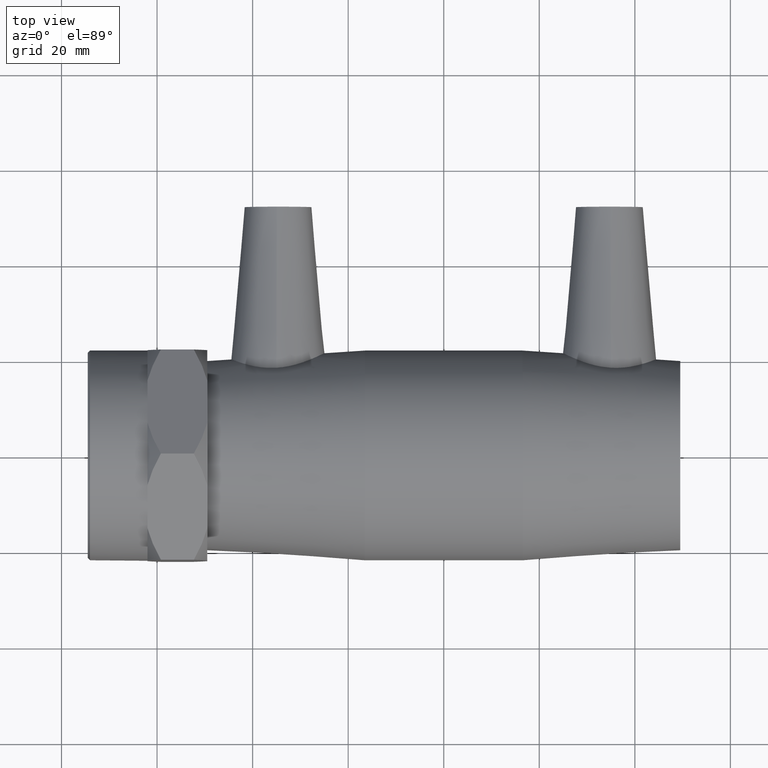
[diagram: clean part render]
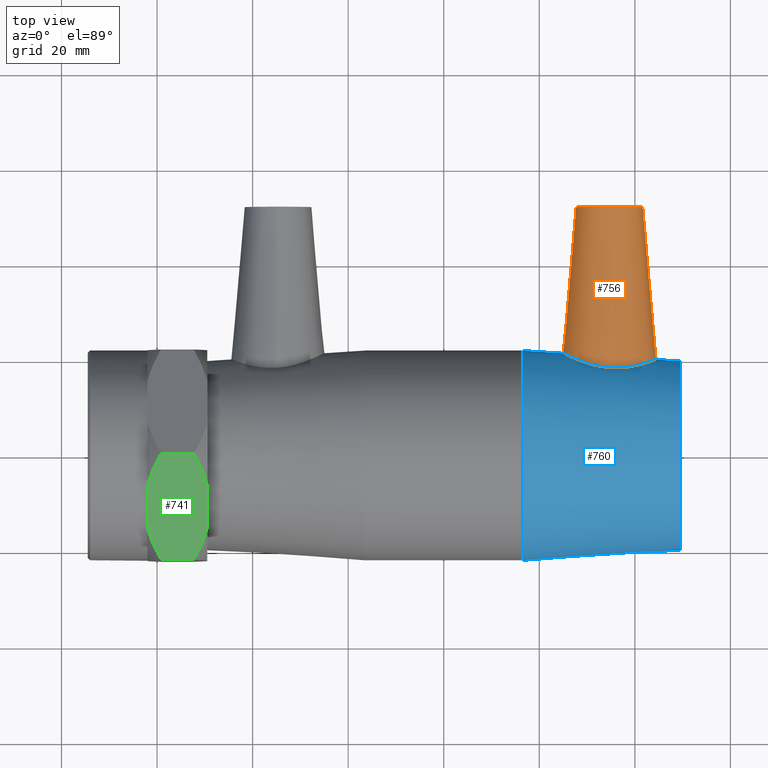
[diagram: same view with three faces highlighted in distinct colors, each labeled with its STEP entity id]
A machine part, top view with three faces highlighted in distinct colors.
Their STEP definitions:

[orange] entity #756 — the highlighted conical surface has half-angle 5 deg.
#15=B_SPLINE_CURVE_WITH_KNOTS('',3,(#1338,#1339,#1340,#1341,#1342,#1343,
#1344,#1345,#1346,#1347,#1348,#1349,#1350,#1351,#1352,#1353,#1354,#1355,
#1356,#1357,#1358,#1359,#1360,#1361,#1362,#1363,#1364,#1365,#1366,#1367,
#1368,#1369,#1370,#1371),.UNSPECIFIED.,.T.,.F.,(4,2,2,2,2,2,2,2,2,2,2,2,
2,2,2,2,4),(0.,0.394093200805638,0.788186401611276,1.17124153722218,1.55429667283309,
1.937351808444,2.32040694405491,2.71450014486055,3.10859334566618,3.47538130356139,
3.8421692614566,4.21078007989799,4.57939089833937,4.94800171678076,5.31661253522214,
5.68340049311735,6.05018845101256),.UNSPECIFIED.);
#141=FACE_BOUND('',#270,.T.);
#197=FACE_OUTER_BOUND('',#269,.T.);
#269=EDGE_LOOP('',(#670));
#270=EDGE_LOOP('',(#671));
#330=CIRCLE('',#852,7.);
#399=VERTEX_POINT('',#1335);
#400=VERTEX_POINT('',#1337);
#494=EDGE_CURVE('',#399,#399,#330,.T.);
#495=EDGE_CURVE('',#400,#400,#15,.T.);
#670=ORIENTED_EDGE('',*,*,#494,.F.);
#671=ORIENTED_EDGE('',*,*,#495,.F.);
#707=CONICAL_SURFACE('',#851,7.,5.);
#756=ADVANCED_FACE('',(#197,#141),#707,.T.);
#851=AXIS2_PLACEMENT_3D('',#1334,#1059,#1060);
#852=AXIS2_PLACEMENT_3D('',#1336,#1061,#1062);
#1059=DIRECTION('center_axis',(0.,-1.,0.));
#1060=DIRECTION('ref_axis',(-1.,0.,0.));
#1061=DIRECTION('center_axis',(0.,1.,0.));
#1062=DIRECTION('ref_axis',(-1.,0.,0.));
#1334=CARTESIAN_POINT('Origin',(34.65,52.,0.));
#1335=CARTESIAN_POINT('',(41.65,52.,8.57252759403147E-16));
#1336=CARTESIAN_POINT('Origin',(34.65,52.,0.));
#1337=CARTESIAN_POINT('',(35.018674119023,18.227518290105,9.94787999613668));
#1338=CARTESIAN_POINT('Ctrl Pts',(35.0186741190229,18.2275182901051,9.94787999613668));
#1339=CARTESIAN_POINT('Ctrl Pts',(33.707939630436,18.3042209200191,9.98974134805684));
#1340=CARTESIAN_POINT('Ctrl Pts',(32.3390215532827,18.54784664838,9.74685273980293));
#1341=CARTESIAN_POINT('Ctrl Pts',(29.8542223936567,19.2309839803142,8.72693092561452));
#1342=CARTESIAN_POINT('Ctrl Pts',(28.7350942614299,19.6597566134958,7.95064648519837));
#1343=CARTESIAN_POINT('Ctrl Pts',(26.9944829481193,20.4051425593376,6.18278518756745));
#1344=CARTESIAN_POINT('Ctrl Pts',(26.2417805238727,20.7761578379485,5.07604768561201));
#1345=CARTESIAN_POINT('Ctrl Pts',(25.2318715436223,21.2934255653643,2.62383380056174));
#1346=CARTESIAN_POINT('Ctrl Pts',(24.9759037282649,21.434939751449,1.27685045203636));
#1347=CARTESIAN_POINT('Ctrl Pts',(24.9759037282649,21.434939751449,-1.27685045203636));
#1348=CARTESIAN_POINT('Ctrl Pts',(25.2318715436223,21.2934255653643,-2.62383380056175));
#1349=CARTESIAN_POINT('Ctrl Pts',(26.2417805238727,20.7761578379485,-5.07604768561202));
#1350=CARTESIAN_POINT('Ctrl Pts',(26.9944829481193,20.4051425593376,-6.18278518756745));
#1351=CARTESIAN_POINT('Ctrl Pts',(28.7350942614299,19.6597566134958,-7.95064648519837));
#1352=CARTESIAN_POINT('Ctrl Pts',(29.8542223936567,19.2309839803142,-8.72693092561452));
#1353=CARTESIAN_POINT('Ctrl Pts',(32.3390215532827,18.54784664838,-9.74685273980292));
#1354=CARTESIAN_POINT('Ctrl Pts',(33.707939630436,18.3042209200191,-9.98974134805684));
#1355=CARTESIAN_POINT('Ctrl Pts',(36.2385927205842,18.1561300983427,-9.90891906061652));
#1356=CARTESIAN_POINT('Ctrl Pts',(37.522026983237,18.2240985420471,-9.61727960843831));
#1357=CARTESIAN_POINT('Ctrl Pts',(39.8489800625211,18.5781445885812,-8.54959006515433));
#1358=CARTESIAN_POINT('Ctrl Pts',(40.8945184872165,18.8537818666071,-7.77450624810246));
#1359=CARTESIAN_POINT('Ctrl Pts',(42.5373646513368,19.367839728808,-6.02927958400032));
#1360=CARTESIAN_POINT('Ctrl Pts',(43.2507353577823,19.6430450233751,-4.93341442498446));
#1361=CARTESIAN_POINT('Ctrl Pts',(44.2012754228473,20.0302295295949,-2.53367087657522));
#1362=CARTESIAN_POINT('Ctrl Pts',(44.4376081725194,20.1374927884987,-1.22870272813795));
#1363=CARTESIAN_POINT('Ctrl Pts',(44.4376081725194,20.1374927884987,1.22870272813794));
#1364=CARTESIAN_POINT('Ctrl Pts',(44.2012754228473,20.0302295295949,2.53367087657522));
#1365=CARTESIAN_POINT('Ctrl Pts',(43.2507353577823,19.6430450233751,4.93341442498445));
#1366=CARTESIAN_POINT('Ctrl Pts',(42.5373646513368,19.367839728808,6.02927958400031));
#1367=CARTESIAN_POINT('Ctrl Pts',(40.8945184872165,18.8537818666071,7.77450624810246));
#1368=CARTESIAN_POINT('Ctrl Pts',(39.8489800625211,18.5781445885812,8.54959006515433));
#1369=CARTESIAN_POINT('Ctrl Pts',(37.522026983237,18.2240985420471,9.61727960843831));
#1370=CARTESIAN_POINT('Ctrl Pts',(36.2385927205842,18.1561300983427,9.90891906061651));
#1371=CARTESIAN_POINT('Ctrl Pts',(35.0186741190229,18.2275182901051,9.94787999613668));

[blue] entity #760 — the highlighted conical surface has half-angle 3.814 deg.
#15=B_SPLINE_CURVE_WITH_KNOTS('',3,(#1338,#1339,#1340,#1341,#1342,#1343,
#1344,#1345,#1346,#1347,#1348,#1349,#1350,#1351,#1352,#1353,#1354,#1355,
#1356,#1357,#1358,#1359,#1360,#1361,#1362,#1363,#1364,#1365,#1366,#1367,
#1368,#1369,#1370,#1371),.UNSPECIFIED.,.T.,.F.,(4,2,2,2,2,2,2,2,2,2,2,2,
2,2,2,2,4),(0.,0.394093200805638,0.788186401611276,1.17124153722218,1.55429667283309,
1.937351808444,2.32040694405491,2.71450014486055,3.10859334566618,3.47538130356139,
3.8421692614566,4.21078007989799,4.57939089833937,4.94800171678076,5.31661253522214,
5.68340049311735,6.05018845101256),.UNSPECIFIED.);
#145=FACE_BOUND('',#278,.T.);
#146=FACE_BOUND('',#279,.T.);
#201=FACE_OUTER_BOUND('',#277,.T.);
#277=EDGE_LOOP('',(#678));
#278=EDGE_LOOP('',(#679));
#279=EDGE_LOOP('',(#680));
#293=CIRCLE('',#772,19.8);
#331=CIRCLE('',#856,22.);
#338=VERTEX_POINT('',#1098);
#400=VERTEX_POINT('',#1337);
#402=VERTEX_POINT('',#1410);
#409=EDGE_CURVE('',#338,#338,#293,.T.);
#495=EDGE_CURVE('',#400,#400,#15,.T.);
#497=EDGE_CURVE('',#402,#402,#331,.T.);
#678=ORIENTED_EDGE('',*,*,#409,.F.);
#679=ORIENTED_EDGE('',*,*,#495,.T.);
#680=ORIENTED_EDGE('',*,*,#497,.T.);
#709=CONICAL_SURFACE('',#858,20.9,3.81407483429036);
#760=ADVANCED_FACE('',(#201,#145,#146),#709,.T.);
#772=AXIS2_PLACEMENT_3D('',#1099,#877,#878);
#856=AXIS2_PLACEMENT_3D('',#1411,#1069,#1070);
#858=AXIS2_PLACEMENT_3D('',#1414,#1073,#1074);
#877=DIRECTION('center_axis',(1.,0.,0.));
#878=DIRECTION('ref_axis',(0.,0.,-1.));
#1069=DIRECTION('center_axis',(1.,0.,0.));
#1070=DIRECTION('ref_axis',(0.,0.,-1.));
#1073=DIRECTION('center_axis',(-1.,0.,0.));
#1074=DIRECTION('ref_axis',(0.,1.,0.));
#1098=CARTESIAN_POINT('',(49.5,19.8,0.));
#1099=CARTESIAN_POINT('Origin',(49.5,0.,0.));
#1337=CARTESIAN_POINT('',(35.018674119023,18.227518290105,9.94787999613668));
#1338=CARTESIAN_POINT('Ctrl Pts',(35.0186741190229,18.2275182901051,9.94787999613668));
#1339=CARTESIAN_POINT('Ctrl Pts',(33.707939630436,18.3042209200191,9.98974134805684));
#1340=CARTESIAN_POINT('Ctrl Pts',(32.3390215532827,18.54784664838,9.74685273980293));
#1341=CARTESIAN_POINT('Ctrl Pts',(29.8542223936567,19.2309839803142,8.72693092561452));
#1342=CARTESIAN_POINT('Ctrl Pts',(28.7350942614299,19.6597566134958,7.95064648519837));
#1343=CARTESIAN_POINT('Ctrl Pts',(26.9944829481193,20.4051425593376,6.18278518756745));
#1344=CARTESIAN_POINT('Ctrl Pts',(26.2417805238727,20.7761578379485,5.07604768561201));
#1345=CARTESIAN_POINT('Ctrl Pts',(25.2318715436223,21.2934255653643,2.62383380056174));
#1346=CARTESIAN_POINT('Ctrl Pts',(24.9759037282649,21.434939751449,1.27685045203636));
#1347=CARTESIAN_POINT('Ctrl Pts',(24.9759037282649,21.434939751449,-1.27685045203636));
#1348=CARTESIAN_POINT('Ctrl Pts',(25.2318715436223,21.2934255653643,-2.62383380056175));
#1349=CARTESIAN_POINT('Ctrl Pts',(26.2417805238727,20.7761578379485,-5.07604768561202));
#1350=CARTESIAN_POINT('Ctrl Pts',(26.9944829481193,20.4051425593376,-6.18278518756745));
#1351=CARTESIAN_POINT('Ctrl Pts',(28.7350942614299,19.6597566134958,-7.95064648519837));
#1352=CARTESIAN_POINT('Ctrl Pts',(29.8542223936567,19.2309839803142,-8.72693092561452));
#1353=CARTESIAN_POINT('Ctrl Pts',(32.3390215532827,18.54784664838,-9.74685273980292));
#1354=CARTESIAN_POINT('Ctrl Pts',(33.707939630436,18.3042209200191,-9.98974134805684));
#1355=CARTESIAN_POINT('Ctrl Pts',(36.2385927205842,18.1561300983427,-9.90891906061652));
#1356=CARTESIAN_POINT('Ctrl Pts',(37.522026983237,18.2240985420471,-9.61727960843831));
#1357=CARTESIAN_POINT('Ctrl Pts',(39.8489800625211,18.5781445885812,-8.54959006515433));
#1358=CARTESIAN_POINT('Ctrl Pts',(40.8945184872165,18.8537818666071,-7.77450624810246));
#1359=CARTESIAN_POINT('Ctrl Pts',(42.5373646513368,19.367839728808,-6.02927958400032));
#1360=CARTESIAN_POINT('Ctrl Pts',(43.2507353577823,19.6430450233751,-4.93341442498446));
#1361=CARTESIAN_POINT('Ctrl Pts',(44.2012754228473,20.0302295295949,-2.53367087657522));
#1362=CARTESIAN_POINT('Ctrl Pts',(44.4376081725194,20.1374927884987,-1.22870272813795));
#1363=CARTESIAN_POINT('Ctrl Pts',(44.4376081725194,20.1374927884987,1.22870272813794));
#1364=CARTESIAN_POINT('Ctrl Pts',(44.2012754228473,20.0302295295949,2.53367087657522));
#1365=CARTESIAN_POINT('Ctrl Pts',(43.2507353577823,19.6430450233751,4.93341442498445));
#1366=CARTESIAN_POINT('Ctrl Pts',(42.5373646513368,19.367839728808,6.02927958400031));
#1367=CARTESIAN_POINT('Ctrl Pts',(40.8945184872165,18.8537818666071,7.77450624810246));
#1368=CARTESIAN_POINT('Ctrl Pts',(39.8489800625211,18.5781445885812,8.54959006515433));
#1369=CARTESIAN_POINT('Ctrl Pts',(37.522026983237,18.2240985420471,9.61727960843831));
#1370=CARTESIAN_POINT('Ctrl Pts',(36.2385927205842,18.1561300983427,9.90891906061651));
#1371=CARTESIAN_POINT('Ctrl Pts',(35.0186741190229,18.2275182901051,9.94787999613668));
#1410=CARTESIAN_POINT('',(16.5,22.,0.));
#1411=CARTESIAN_POINT('Origin',(16.5,0.,0.));
#1414=CARTESIAN_POINT('Origin',(33.,0.,0.));

[green] entity #741 — the highlighted planar face has unit normal (0, -0.5, 0.866).
#22=LINE('',#1270,#46);
#23=LINE('',#1272,#47);
#34=LINE('',#1288,#58);
#37=LINE('',#1292,#61);
#38=LINE('',#1293,#62);
#46=VECTOR('',#974,5.18789234709139);
#47=VECTOR('',#977,5.18789234709139);
#58=VECTOR('',#998,6.9);
#61=VECTOR('',#1003,6.89999999999998);
#62=VECTOR('',#1004,10.3757846941828);
#67=(
BOUNDED_CURVE()
B_SPLINE_CURVE(2,(#1144,#1145,#1146),.UNSPECIFIED.,.F.,.F.)
B_SPLINE_CURVE_WITH_KNOTS((3,3),(0.,0.8032803724778),.UNSPECIFIED.)
CURVE()
GEOMETRIC_REPRESENTATION_ITEM()
RATIONAL_B_SPLINE_CURVE((1.,1.01247829138075,1.))
REPRESENTATION_ITEM('')
);
#72=(
BOUNDED_CURVE()
B_SPLINE_CURVE(2,(#1170,#1171,#1172),.UNSPECIFIED.,.F.,.F.)
B_SPLINE_CURVE_WITH_KNOTS((3,3),(0.,0.8032803724778),.UNSPECIFIED.)
CURVE()
GEOMETRIC_REPRESENTATION_ITEM()
RATIONAL_B_SPLINE_CURVE((1.,1.01247829138073,1.))
REPRESENTATION_ITEM('')
);
#78=(
BOUNDED_CURVE()
B_SPLINE_CURVE(2,(#1204,#1205,#1206),.UNSPECIFIED.,.F.,.F.)
B_SPLINE_CURVE_WITH_KNOTS((3,3),(0.,0.8032803724778),.UNSPECIFIED.)
CURVE()
GEOMETRIC_REPRESENTATION_ITEM()
RATIONAL_B_SPLINE_CURVE((1.,1.01247829138073,1.))
REPRESENTATION_ITEM('')
);
#79=(
BOUNDED_CURVE()
B_SPLINE_CURVE(2,(#1210,#1211,#1212),.UNSPECIFIED.,.F.,.F.)
B_SPLINE_CURVE_WITH_KNOTS((3,3),(0.,0.8032803724778),.UNSPECIFIED.)
CURVE()
GEOMETRIC_REPRESENTATION_ITEM()
RATIONAL_B_SPLINE_CURVE((1.,1.01247829138075,1.))
REPRESENTATION_ITEM('')
);
#110=PLANE('',#824);
#182=FACE_OUTER_BOUND('',#244,.T.);
#244=EDGE_LOOP('',(#610,#611,#612,#613,#614,#615,#616,#617,#618));
#349=VERTEX_POINT('',#1125);
#354=VERTEX_POINT('',#1142);
#355=VERTEX_POINT('',#1143);
#360=VERTEX_POINT('',#1164);
#362=VERTEX_POINT('',#1169);
#370=VERTEX_POINT('',#1198);
#371=VERTEX_POINT('',#1202);
#372=VERTEX_POINT('',#1208);
#373=VERTEX_POINT('',#1209);
#425=EDGE_CURVE('',#354,#355,#67,.T.);
#432=EDGE_CURVE('',#362,#360,#72,.T.);
#442=EDGE_CURVE('',#370,#371,#78,.T.);
#443=EDGE_CURVE('',#372,#373,#79,.T.);
#463=EDGE_CURVE('',#349,#355,#22,.T.);
#464=EDGE_CURVE('',#362,#349,#23,.T.);
#475=EDGE_CURVE('',#373,#354,#34,.T.);
#478=EDGE_CURVE('',#370,#360,#37,.T.);
#479=EDGE_CURVE('',#371,#372,#38,.T.);
#610=ORIENTED_EDGE('',*,*,#425,.T.);
#611=ORIENTED_EDGE('',*,*,#463,.F.);
#612=ORIENTED_EDGE('',*,*,#464,.F.);
#613=ORIENTED_EDGE('',*,*,#432,.T.);
#614=ORIENTED_EDGE('',*,*,#478,.F.);
#615=ORIENTED_EDGE('',*,*,#442,.T.);
#616=ORIENTED_EDGE('',*,*,#479,.T.);
#617=ORIENTED_EDGE('',*,*,#443,.T.);
#618=ORIENTED_EDGE('',*,*,#475,.T.);
#741=ADVANCED_FACE('',(#182),#110,.T.);
#824=AXIS2_PLACEMENT_3D('',#1291,#1001,#1002);
#974=DIRECTION('',(0.,0.866025403784438,0.500000000000002));
#977=DIRECTION('',(0.,0.866025403784438,0.500000000000002));
#998=DIRECTION('',(-1.,0.,0.));
#1001=DIRECTION('center_axis',(0.,-0.500000000000002,0.866025403784438));
#1002=DIRECTION('ref_axis',(0.,0.866025403784438,0.500000000000002));
#1003=DIRECTION('',(-1.,0.,0.));
#1004=DIRECTION('',(0.,0.866025403784438,0.500000000000002));
#1125=CARTESIAN_POINT('',(-62.,-11.,19.0525588832576));
#1142=CARTESIAN_POINT('',(-59.2,0.,25.4034118443435));
#1143=CARTESIAN_POINT('',(-62.,-6.50715343532002,21.6465050568033));
#1144=CARTESIAN_POINT('Ctrl Pts',(-59.2,-7.04986097389446E-14,25.4034118443435));
#1145=CARTESIAN_POINT('Ctrl Pts',(-61.1880142665465,-3.44334171583043,23.415397577797));
#1146=CARTESIAN_POINT('Ctrl Pts',(-62.,-6.50715343532007,21.6465050568033));
#1164=CARTESIAN_POINT('',(-59.2,-22.,12.7017059221717));
#1169=CARTESIAN_POINT('',(-62.,-15.4928465646801,16.4586127097119));
#1170=CARTESIAN_POINT('Ctrl Pts',(-62.,-15.49284656468,16.458612709712));
#1171=CARTESIAN_POINT('Ctrl Pts',(-61.1880142665465,-18.5566582841697,14.6897201887183));
#1172=CARTESIAN_POINT('Ctrl Pts',(-59.2,-22.,12.7017059221717));
#1198=CARTESIAN_POINT('',(-52.3,-22.,12.7017059221717));
#1202=CARTESIAN_POINT('',(-49.5,-15.4928465646801,16.4586127097119));
#1204=CARTESIAN_POINT('Ctrl Pts',(-52.3,-22.,12.7017059221717));
#1205=CARTESIAN_POINT('Ctrl Pts',(-50.3119857334535,-18.5566582841697,14.6897201887183));
#1206=CARTESIAN_POINT('Ctrl Pts',(-49.5,-15.49284656468,16.458612709712));
#1208=CARTESIAN_POINT('',(-49.5,-6.50715343532002,21.6465050568033));
#1209=CARTESIAN_POINT('',(-52.3,0.,25.4034118443435));
#1210=CARTESIAN_POINT('Ctrl Pts',(-49.5,-6.50715343532007,21.6465050568033));
#1211=CARTESIAN_POINT('Ctrl Pts',(-50.3119857334535,-3.44334171583043,23.415397577797));
#1212=CARTESIAN_POINT('Ctrl Pts',(-52.3,-7.04986097389446E-14,25.4034118443435));
#1270=CARTESIAN_POINT('',(-62.,-22.,12.7017059221717));
#1272=CARTESIAN_POINT('',(-62.,-22.,12.7017059221717));
#1288=CARTESIAN_POINT('',(-49.5,-4.72740126614582E-14,25.4034118443435));
#1291=CARTESIAN_POINT('Origin',(-49.5,-22.,12.7017059221717));
#1292=CARTESIAN_POINT('',(-49.5,-22.,12.7017059221717));
#1293=CARTESIAN_POINT('',(-49.5,-22.,12.7017059221717));